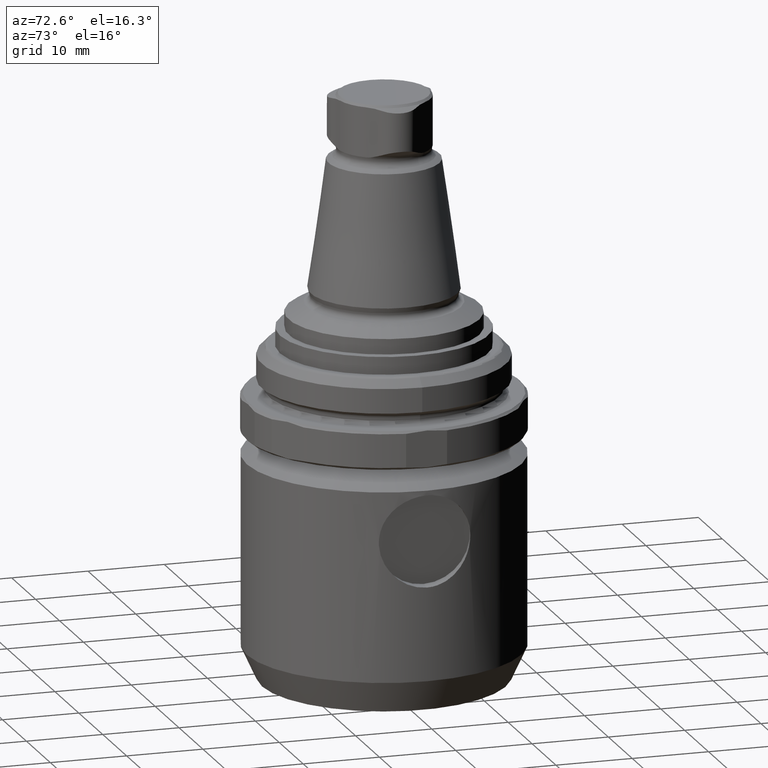
[diagram: clean part render]
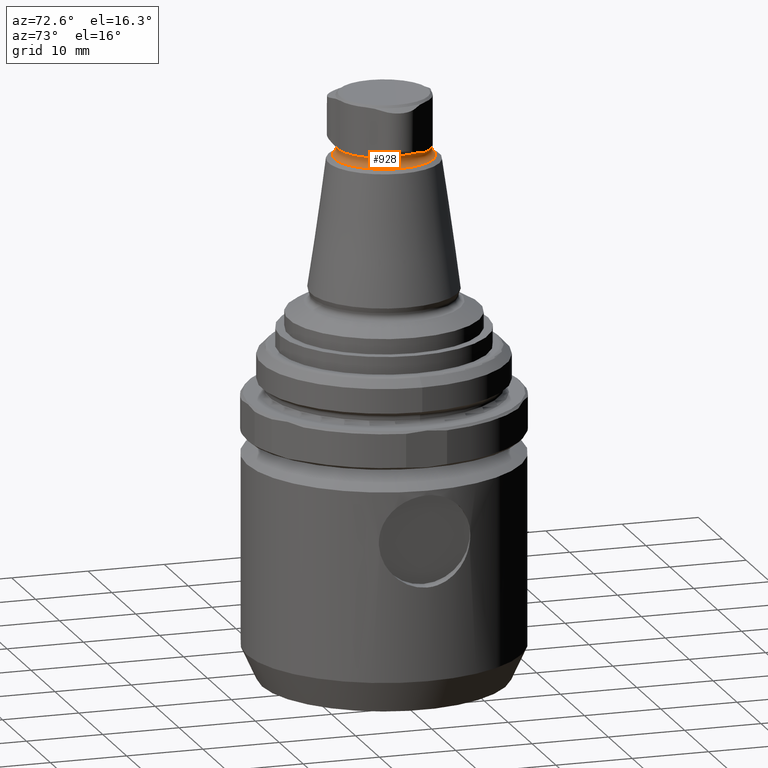
[diagram: same view with one face highlighted and labeled with its STEP entity id]
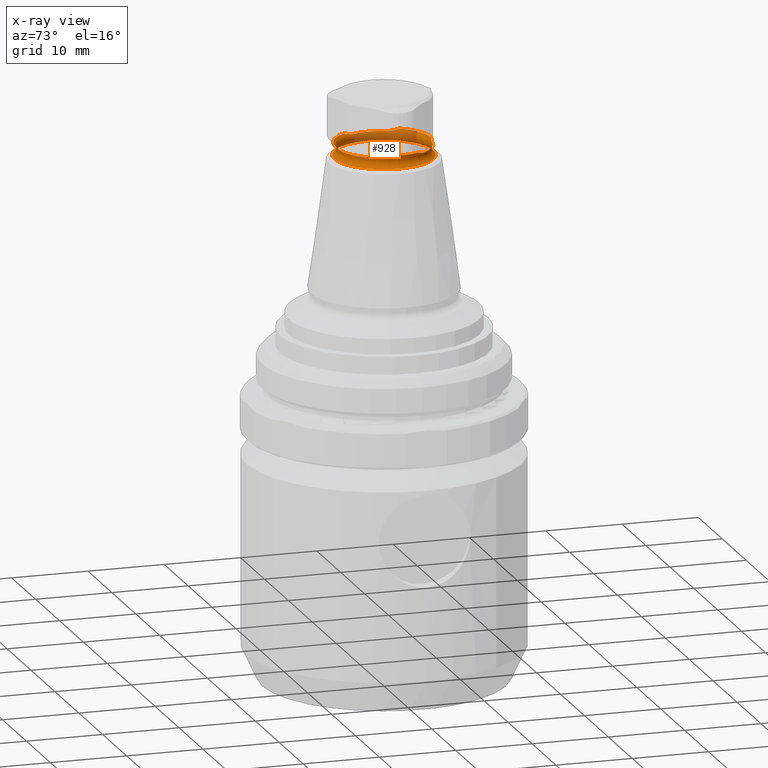
[diagram: x-ray of the same camera — body ghosted, the highlighted face saturated]
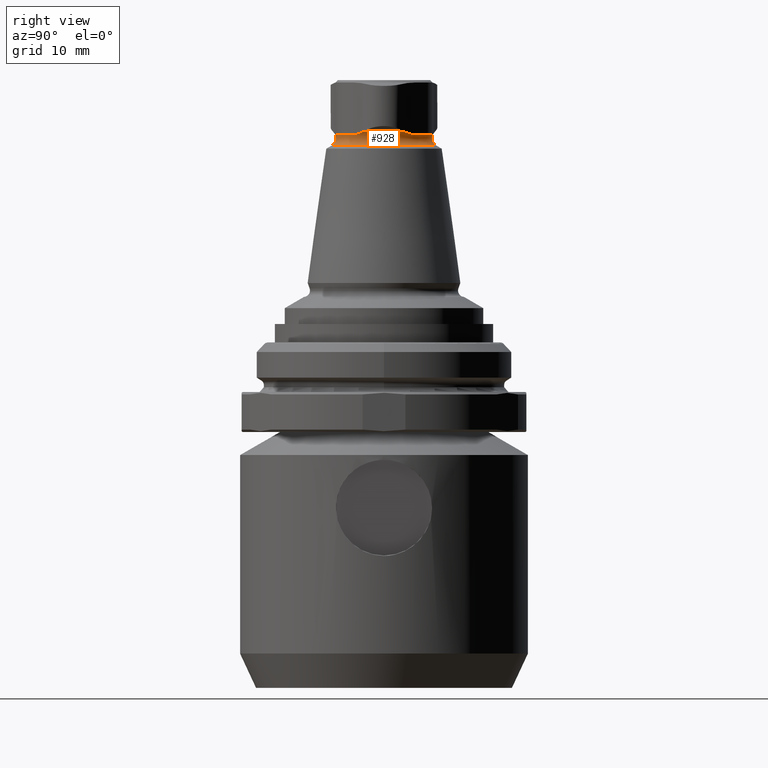
[diagram: same view with one face highlighted and labeled with its STEP entity id]
A machine part, auxiliary view. The second image highlights one B-rep face of the part: STEP entity #928.
The next image is the same camera in x-ray: the body ghosted, the highlighted face saturated — about 28% of this face is hidden behind the body in this view.
A second angle (right view) of the same face is appended — the face is thin or edge-on in the first view.
In plain terms, the highlighted toroidal blend (fillet) surface has major radius 7 mm and minor (blend) radius 1 mm.
Its self-contained STEP definition (entity closure, byte-faithful):
#20=TOROIDAL_SURFACE('',#1023,7.,1.);
#124=CIRCLE('',#1007,6.35721239031346);
#125=CIRCLE('',#1010,6.1);
#126=CIRCLE('',#1013,6.35721239031346);
#127=CIRCLE('',#1016,6.1);
#128=CIRCLE('',#1019,6.35721239031346);
#129=CIRCLE('',#1022,6.1);
#130=CIRCLE('',#1024,6.5);
#261=ORIENTED_EDGE('',*,*,#476,.F.);
#262=ORIENTED_EDGE('',*,*,#475,.T.);
#263=ORIENTED_EDGE('',*,*,#474,.T.);
#264=ORIENTED_EDGE('',*,*,#471,.T.);
#265=ORIENTED_EDGE('',*,*,#470,.T.);
#266=ORIENTED_EDGE('',*,*,#468,.T.);
#267=ORIENTED_EDGE('',*,*,#466,.T.);
#268=ORIENTED_EDGE('',*,*,#463,.T.);
#269=ORIENTED_EDGE('',*,*,#462,.T.);
#270=ORIENTED_EDGE('',*,*,#460,.T.);
#271=ORIENTED_EDGE('',*,*,#458,.T.);
#272=ORIENTED_EDGE('',*,*,#455,.T.);
#273=ORIENTED_EDGE('',*,*,#454,.T.);
#454=EDGE_CURVE('',#572,#573,#656,.T.);
#455=EDGE_CURVE('',#574,#572,#124,.T.);
#458=EDGE_CURVE('',#575,#574,#658,.T.);
#460=EDGE_CURVE('',#576,#575,#125,.T.);
#462=EDGE_CURVE('',#577,#576,#660,.T.);
#463=EDGE_CURVE('',#578,#577,#126,.T.);
#466=EDGE_CURVE('',#579,#578,#662,.T.);
#468=EDGE_CURVE('',#580,#579,#127,.T.);
#470=EDGE_CURVE('',#581,#580,#664,.T.);
#471=EDGE_CURVE('',#582,#581,#128,.T.);
#474=EDGE_CURVE('',#583,#582,#666,.T.);
#475=EDGE_CURVE('',#573,#583,#129,.T.);
#476=EDGE_CURVE('',#584,#584,#130,.T.);
#572=VERTEX_POINT('',#1537);
#573=VERTEX_POINT('',#1539);
#574=VERTEX_POINT('',#1546);
#575=VERTEX_POINT('',#1553);
#576=VERTEX_POINT('',#1560);
#577=VERTEX_POINT('',#1567);
#578=VERTEX_POINT('',#1574);
#579=VERTEX_POINT('',#1581);
#580=VERTEX_POINT('',#1588);
#581=VERTEX_POINT('',#1595);
#582=VERTEX_POINT('',#1602);
#583=VERTEX_POINT('',#1609);
#584=VERTEX_POINT('',#1618);
#656=B_SPLINE_CURVE_WITH_KNOTS('',3,(#1540,#1541,#1542,#1543),
 .UNSPECIFIED.,.F.,.F.,(4,4),(7.25242427065023E-7,0.00151394587366882),
 .UNSPECIFIED.);
#658=B_SPLINE_CURVE_WITH_KNOTS('',3,(#1554,#1555,#1556,#1557),
 .UNSPECIFIED.,.F.,.F.,(4,4),(1.98619874772684E-7,0.00151281044029896),
 .UNSPECIFIED.);
#660=B_SPLINE_CURVE_WITH_KNOTS('',3,(#1568,#1569,#1570,#1571),
 .UNSPECIFIED.,.F.,.F.,(4,4),(7.25242123895215E-7,0.00151394587335702),
 .UNSPECIFIED.);
#662=B_SPLINE_CURVE_WITH_KNOTS('',3,(#1582,#1583,#1584,#1585),
 .UNSPECIFIED.,.F.,.F.,(4,4),(2.50454711423055E-7,0.00151286151555576),
 .UNSPECIFIED.);
#664=B_SPLINE_CURVE_WITH_KNOTS('',3,(#1596,#1597,#1598,#1599),
 .UNSPECIFIED.,.F.,.F.,(4,4),(7.25242527508389E-7,0.00151394587376066),
 .UNSPECIFIED.);
#666=B_SPLINE_CURVE_WITH_KNOTS('',3,(#1610,#1611,#1612,#1613),
 .UNSPECIFIED.,.F.,.F.,(4,4),(2.11519999923279E-7,0.00151282315142367),
 .UNSPECIFIED.);
#708=EDGE_LOOP('',(#261));
#709=EDGE_LOOP('',(#262,#263,#264,#265,#266,#267,#268,#269,#270,#271,#272,
#273));
#806=FACE_BOUND('',#708,.T.);
#807=FACE_BOUND('',#709,.T.);
#928=ADVANCED_FACE('',(#806,#807),#20,.F.);
#1007=AXIS2_PLACEMENT_3D('',#1545,#1159,#1160);
#1010=AXIS2_PLACEMENT_3D('',#1561,#1167,#1168);
#1013=AXIS2_PLACEMENT_3D('',#1573,#1173,#1174);
#1016=AXIS2_PLACEMENT_3D('',#1589,#1181,#1182);
#1019=AXIS2_PLACEMENT_3D('',#1601,#1187,#1188);
#1022=AXIS2_PLACEMENT_3D('',#1615,#1194,#1195);
#1023=AXIS2_PLACEMENT_3D('',#1616,#1196,#1197);
#1024=AXIS2_PLACEMENT_3D('',#1617,#1198,#1199);
#1159=DIRECTION('',(2.38112837580965E-16,-7.08117796935346E-33,-1.));
#1160=DIRECTION('',(-1.,6.12303176911188E-17,-2.38112837580965E-16));
#1167=DIRECTION('',(2.38112837580965E-16,-7.08117796935346E-33,-1.));
#1168=DIRECTION('',(-1.,6.12303176911188E-17,-2.38112837580965E-16));
#1173=DIRECTION('',(2.38112837580965E-16,-7.08117796935346E-33,-1.));
#1174=DIRECTION('',(-1.,6.12303176911188E-17,-2.38112837580965E-16));
#1181=DIRECTION('',(2.38112837580965E-16,-7.08117796935346E-33,-1.));
#1182=DIRECTION('',(-1.,6.12303176911188E-17,-2.38112837580965E-16));
#1187=DIRECTION('',(2.38112837580965E-16,-7.08117796935346E-33,-1.));
#1188=DIRECTION('',(-1.,6.12303176911188E-17,-2.38112837580965E-16));
#1194=DIRECTION('',(2.38112837580965E-16,-7.08117796935346E-33,-1.));
#1195=DIRECTION('',(-1.,6.12303176911188E-17,-2.38112837580965E-16));
#1196=DIRECTION('',(2.38112837580965E-16,-7.08117796935346E-33,-1.));
#1197=DIRECTION('',(-1.,6.12303176911188E-17,-2.38112837580965E-16));
#1198=DIRECTION('',(2.38112837580965E-16,-7.08117796935346E-33,-1.));
#1199=DIRECTION('',(-1.,6.12303176911188E-17,-2.38112837580965E-16));
#1537=CARTESIAN_POINT('',(-5.200849460121,-3.65586026383862,21.5126453215741));
#1539=CARTESIAN_POINT('',(-5.66792723823906,-2.25490594527305,21.1824907728094));
#1540=CARTESIAN_POINT('',(-5.2008494601203,-3.65586026383821,21.5126453215748));
#1541=CARTESIAN_POINT('',(-5.32827064839609,-3.18629900667318,21.3735323557362));
#1542=CARTESIAN_POINT('',(-5.47655790418182,-2.73593153454006,21.1824907728091));
#1543=CARTESIAN_POINT('',(-5.66792723823903,-2.2549059452731,21.1824907728091));
#1545=CARTESIAN_POINT('',(-1.76863830117105E-15,-5.30192909976053E-32,21.5126453215741));
#1546=CARTESIAN_POINT('',(-0.565643131109832,-6.33199788564267,21.5126453215741));
#1553=CARTESIAN_POINT('',(0.881157787368482,-6.03602194775332,21.1824907728091));
#1554=CARTESIAN_POINT('',(0.881157787368477,-6.03602194775332,21.1824907728091));
#1555=CARTESIAN_POINT('',(0.37345578640574,-6.11013790950481,21.1824907728091));
#1556=CARTESIAN_POINT('',(-0.0942174416813209,-6.20728600376692,21.3732179312884));
#1557=CARTESIAN_POINT('',(-0.565643131109831,-6.33199788564267,21.5126453215741));
#1560=CARTESIAN_POINT('',(4.78676945087054,-3.78111600248028,21.1824907728091));
#1561=CARTESIAN_POINT('',(-1.77715354091932E-15,-5.00222208531871E-32,21.1824907728091));
#1567=CARTESIAN_POINT('',(5.76649259123083,-2.67613762180404,21.5126453215741));
#1568=CARTESIAN_POINT('',(5.76649259123012,-2.67613762180364,21.5126453215748));
#1569=CARTESIAN_POINT('',(5.42355106463213,-3.02126838072681,21.3735322975673));
#1570=CARTESIAN_POINT('',(5.10766472708839,-3.37487305618591,21.1824907728091));
#1571=CARTESIAN_POINT('',(4.78676945087053,-3.78111600248027,21.1824907728091));
#1573=CARTESIAN_POINT('',(-1.76863830117105E-15,-5.30192909976053E-32,21.5126453215741));
#1574=CARTESIAN_POINT('',(5.76649259123086,2.67613762180398,21.5126453215741));
#1581=CARTESIAN_POINT('',(4.78676945087069,3.78111600248003,21.1824907728091));
#1582=CARTESIAN_POINT('',(4.78676945087069,3.78111600248003,21.1824907728091));
#1583=CARTESIAN_POINT('',(5.10480501797821,3.37849335458405,21.1824907728091));
#1584=CARTESIAN_POINT('',(5.42277574171891,3.02204865306206,21.3732177905536));
#1585=CARTESIAN_POINT('',(5.76649259123086,2.67613762180397,21.5126453215741));
#1588=CARTESIAN_POINT('',(0.881157787368487,6.03602194775332,21.1824907728093));
#1589=CARTESIAN_POINT('',(-1.77715354091932E-15,-5.00222208531871E-32,21.1824907728091));
#1595=CARTESIAN_POINT('',(-0.56564313110992,6.33199788564267,21.5126453215741));
#1596=CARTESIAN_POINT('',(-0.565643131109913,6.33199788564186,21.5126453215748));
#1597=CARTESIAN_POINT('',(-0.0952806247977024,6.20756726032507,21.3735323750087));
#1598=CARTESIAN_POINT('',(0.368892509069224,6.11080407132391,21.1824907728091));
#1599=CARTESIAN_POINT('',(0.881157787368426,6.03602194775329,21.1824907728091));
#1601=CARTESIAN_POINT('',(-1.76863830117105E-15,-5.30192909976053E-32,21.5126453215741));
#1602=CARTESIAN_POINT('',(-5.20084946012099,3.65586026383863,21.5126453215741));
#1609=CARTESIAN_POINT('',(-5.66792723823904,2.25490594527305,21.1824907728091));
#1610=CARTESIAN_POINT('',(-5.66792723823904,2.25490594527305,21.1824907728091));
#1611=CARTESIAN_POINT('',(-5.4782628015704,2.7316461077499,21.1824907728091));
#1612=CARTESIAN_POINT('',(-5.32855867906303,3.18523758161876,21.3732178962584));
#1613=CARTESIAN_POINT('',(-5.20084946012099,3.65586026383863,21.5126453215741));
#1615=CARTESIAN_POINT('',(-1.77715354091932E-15,-5.00222208531871E-32,21.1824907728091));
#1616=CARTESIAN_POINT('',(-1.67336256130181E-15,-5.31088347701509E-32,20.7466008784551));
#1617=CARTESIAN_POINT('',(-1.38002151879454E-15,-6.45762680419439E-32,19.8805754746706));
#1618=CARTESIAN_POINT('',(-6.5,3.97997064992272E-16,19.8805754746706));